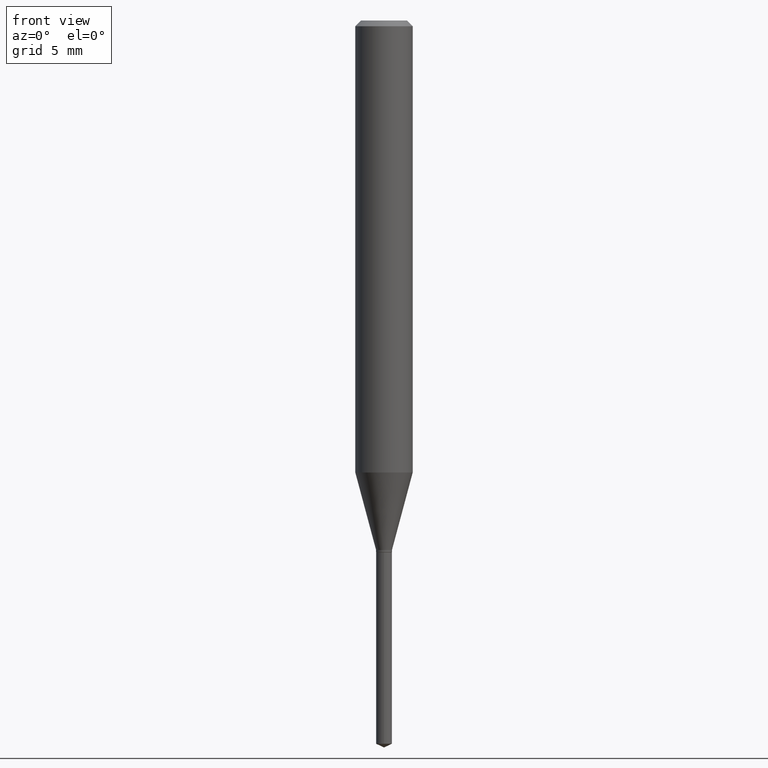
[diagram: clean part render]
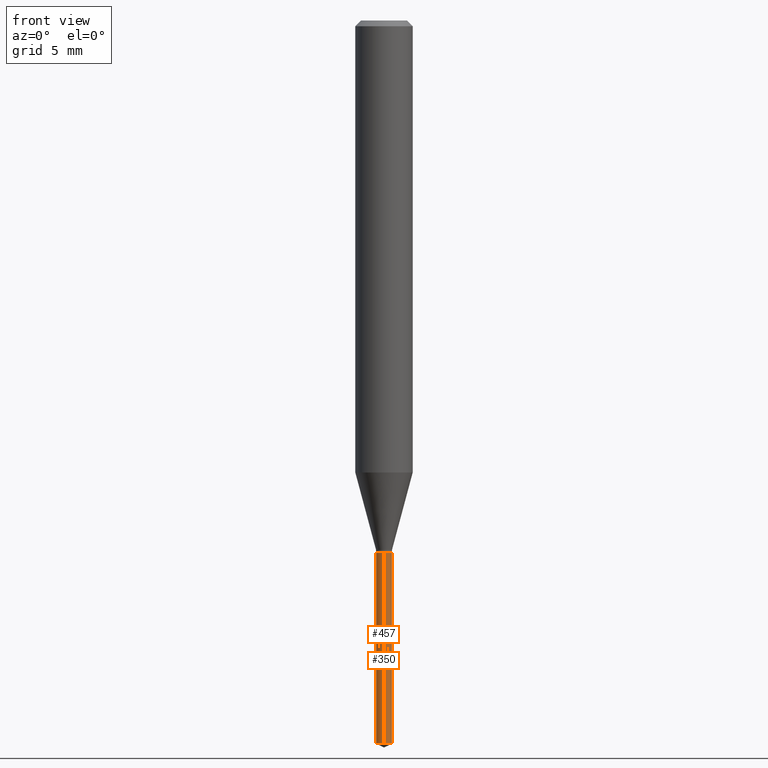
[diagram: same view with one multi-face feature highlighted, each face labeled with its STEP entity id]
A machine part, front view. The highlighted faces form ONE feature: a constant-radius fillet chain: 2 tangent blend faces with common blend radius 0.4153 mm. The faces share edges in the B-rep.
Their STEP definitions:
[1] entity #350 (Cylinder):
#27 = DIRECTION ( 'NONE',  ( -6.982962677686265922E-15, -1.000000000000000000, 0.000000000000000000 ) ) ;
#35 = AXIS2_PLACEMENT_3D ( 'NONE', #406, #303, #190 ) ;
#47 = VERTEX_POINT ( 'NONE', #308 ) ;
#49 = VERTEX_POINT ( 'NONE', #318 ) ;
#51 = CIRCLE ( 'NONE', #35, 0.01634999999999999995 ) ;
#57 = DIRECTION ( 'NONE',  ( -2.445470214571802116E-29, 3.491479321953280158E-15, 1.000000000000000000 ) ) ;
#76 = CARTESIAN_POINT ( 'NONE',  ( -1.141714397801436783E-16, -0.01635000000000381981, -1.094499999999999806 ) ) ;
#81 = AXIS2_PLACEMENT_3D ( 'NONE', #388, #354, #419 ) ;
#88 = EDGE_CURVE ( 'NONE', #49, #456, #380, .T. ) ;
#89 = CARTESIAN_POINT ( 'NONE',  ( 1.161737372968127416E-16, 0.01634999999999479925, -1.488475869789165795 ) ) ;
#111 = DIRECTION ( 'NONE',  ( -2.445470214571802396E-29, 3.491479321953280158E-15, 1.000000000000000000 ) ) ;
#117 = DIRECTION ( 'NONE',  ( -2.445470214571802396E-29, 3.491479321953280158E-15, 1.000000000000000000 ) ) ;
#127 = VERTEX_POINT ( 'NONE', #89 ) ;
#164 = AXIS2_PLACEMENT_3D ( 'NONE', #397, #57, #27 ) ;
#169 = EDGE_LOOP ( 'NONE', ( #329, #460, #324, #245 ) ) ;
#190 = DIRECTION ( 'NONE',  ( -6.982962677686265922E-15, -1.000000000000000000, 0.000000000000000000 ) ) ;
#233 = VECTOR ( 'NONE', #111, 39.37007874015748143 ) ;
#245 = ORIENTED_EDGE ( 'NONE', *, *, #402, .F. ) ;
#260 = LINE ( 'NONE', #447, #233 ) ;
#303 = DIRECTION ( 'NONE',  ( -2.445470214571802116E-29, 3.491479321953280158E-15, 1.000000000000000000 ) ) ;
#308 = CARTESIAN_POINT ( 'NONE',  ( -1.141714397801340394E-16, -0.01635000000000519371, -1.488475869789165795 ) ) ;
#318 = CARTESIAN_POINT ( 'NONE',  ( -1.141714397801436783E-16, -0.01635000000000381981, -1.094499999999999806 ) ) ;
#320 = FACE_OUTER_BOUND ( 'NONE', #169, .T. ) ;
#324 = ORIENTED_EDGE ( 'NONE', *, *, #88, .F. ) ;
#329 = ORIENTED_EDGE ( 'NONE', *, *, #359, .T. ) ;
#335 = LINE ( 'NONE', #76, #454 ) ;
#350 = ADVANCED_FACE ( 'NONE', ( #320 ), #466, .T. ) ;
#354 = DIRECTION ( 'NONE',  ( -2.445470214571802116E-29, 3.491479321953280158E-15, 1.000000000000000000 ) ) ;
#359 = EDGE_CURVE ( 'NONE', #47, #127, #51, .T. ) ;
#380 = CIRCLE ( 'NONE', #81, 0.01634999999999999995 ) ;
#388 = CARTESIAN_POINT ( 'NONE',  ( 2.676565608369631794E-29, -3.821426325363822773E-15, -1.094499999999999806 ) ) ;
#397 = CARTESIAN_POINT ( 'NONE',  ( 2.676565608369631794E-29, -3.821426325363822773E-15, -1.094499999999999806 ) ) ;
#402 = EDGE_CURVE ( 'NONE', #47, #49, #335, .T. ) ;
#406 = CARTESIAN_POINT ( 'NONE',  ( 3.640021863199055289E-29, -5.196984928081253021E-15, -1.488475869789165795 ) ) ;
#419 = DIRECTION ( 'NONE',  ( -6.982962677686265922E-15, -1.000000000000000000, 0.000000000000000000 ) ) ;
#446 = EDGE_CURVE ( 'NONE', #127, #456, #260, .T. ) ;
#447 = CARTESIAN_POINT ( 'NONE',  ( 1.161737372968031274E-16, 0.01634999999999617662, -1.094499999999999806 ) ) ;
#454 = VECTOR ( 'NONE', #117, 39.37007874015748143 ) ;
#456 = VERTEX_POINT ( 'NONE', #483 ) ;
#460 = ORIENTED_EDGE ( 'NONE', *, *, #446, .T. ) ;
#466 = CYLINDRICAL_SURFACE ( 'NONE', #164, 0.01634999999999999995 ) ;
#483 = CARTESIAN_POINT ( 'NONE',  ( 1.161737372968127909E-16, 0.01634999999999617315, -1.094499999999999806 ) ) ;
[2] entity #457 (Cylinder):
#13 = ORIENTED_EDGE ( 'NONE', *, *, #206, .F. ) ;
#47 = VERTEX_POINT ( 'NONE', #308 ) ;
#49 = VERTEX_POINT ( 'NONE', #318 ) ;
#50 = AXIS2_PLACEMENT_3D ( 'NONE', #183, #401, #99 ) ;
#71 = CYLINDRICAL_SURFACE ( 'NONE', #148, 0.01634999999999999995 ) ;
#76 = CARTESIAN_POINT ( 'NONE',  ( -1.141714397801436783E-16, -0.01635000000000381981, -1.094499999999999806 ) ) ;
#89 = CARTESIAN_POINT ( 'NONE',  ( 1.161737372968127416E-16, 0.01634999999999479925, -1.488475869789165795 ) ) ;
#99 = DIRECTION ( 'NONE',  ( -6.982962677686265922E-15, -1.000000000000000000, 0.000000000000000000 ) ) ;
#111 = DIRECTION ( 'NONE',  ( -2.445470214571802396E-29, 3.491479321953280158E-15, 1.000000000000000000 ) ) ;
#117 = DIRECTION ( 'NONE',  ( -2.445470214571802396E-29, 3.491479321953280158E-15, 1.000000000000000000 ) ) ;
#127 = VERTEX_POINT ( 'NONE', #89 ) ;
#148 = AXIS2_PLACEMENT_3D ( 'NONE', #444, #381, #231 ) ;
#162 = ORIENTED_EDGE ( 'NONE', *, *, #189, .T. ) ;
#163 = CIRCLE ( 'NONE', #50, 0.01634999999999999995 ) ;
#178 = ORIENTED_EDGE ( 'NONE', *, *, #402, .T. ) ;
#183 = CARTESIAN_POINT ( 'NONE',  ( 3.640021863199055289E-29, -5.196984928081253021E-15, -1.488475869789165795 ) ) ;
#189 = EDGE_CURVE ( 'NONE', #127, #47, #163, .T. ) ;
#201 = AXIS2_PLACEMENT_3D ( 'NONE', #438, #430, #403 ) ;
#206 = EDGE_CURVE ( 'NONE', #456, #49, #391, .T. ) ;
#231 = DIRECTION ( 'NONE',  ( -6.982962677686265922E-15, -1.000000000000000000, 0.000000000000000000 ) ) ;
#233 = VECTOR ( 'NONE', #111, 39.37007874015748143 ) ;
#260 = LINE ( 'NONE', #447, #233 ) ;
#300 = FACE_OUTER_BOUND ( 'NONE', #418, .T. ) ;
#308 = CARTESIAN_POINT ( 'NONE',  ( -1.141714397801340394E-16, -0.01635000000000519371, -1.488475869789165795 ) ) ;
#318 = CARTESIAN_POINT ( 'NONE',  ( -1.141714397801436783E-16, -0.01635000000000381981, -1.094499999999999806 ) ) ;
#335 = LINE ( 'NONE', #76, #454 ) ;
#381 = DIRECTION ( 'NONE',  ( -2.445470214571802116E-29, 3.491479321953280158E-15, 1.000000000000000000 ) ) ;
#391 = CIRCLE ( 'NONE', #201, 0.01634999999999999995 ) ;
#401 = DIRECTION ( 'NONE',  ( -2.445470214571802116E-29, 3.491479321953280158E-15, 1.000000000000000000 ) ) ;
#402 = EDGE_CURVE ( 'NONE', #47, #49, #335, .T. ) ;
#403 = DIRECTION ( 'NONE',  ( -6.982962677686265922E-15, -1.000000000000000000, 0.000000000000000000 ) ) ;
#418 = EDGE_LOOP ( 'NONE', ( #465, #162, #178, #13 ) ) ;
#430 = DIRECTION ( 'NONE',  ( -2.445470214571802116E-29, 3.491479321953280158E-15, 1.000000000000000000 ) ) ;
#438 = CARTESIAN_POINT ( 'NONE',  ( 2.676565608369631794E-29, -3.821426325363822773E-15, -1.094499999999999806 ) ) ;
#444 = CARTESIAN_POINT ( 'NONE',  ( 2.676565608369631794E-29, -3.821426325363822773E-15, -1.094499999999999806 ) ) ;
#446 = EDGE_CURVE ( 'NONE', #127, #456, #260, .T. ) ;
#447 = CARTESIAN_POINT ( 'NONE',  ( 1.161737372968031274E-16, 0.01634999999999617662, -1.094499999999999806 ) ) ;
#454 = VECTOR ( 'NONE', #117, 39.37007874015748143 ) ;
#456 = VERTEX_POINT ( 'NONE', #483 ) ;
#457 = ADVANCED_FACE ( 'NONE', ( #300 ), #71, .T. ) ;
#465 = ORIENTED_EDGE ( 'NONE', *, *, #446, .F. ) ;
#483 = CARTESIAN_POINT ( 'NONE',  ( 1.161737372968127909E-16, 0.01634999999999617315, -1.094499999999999806 ) ) ;